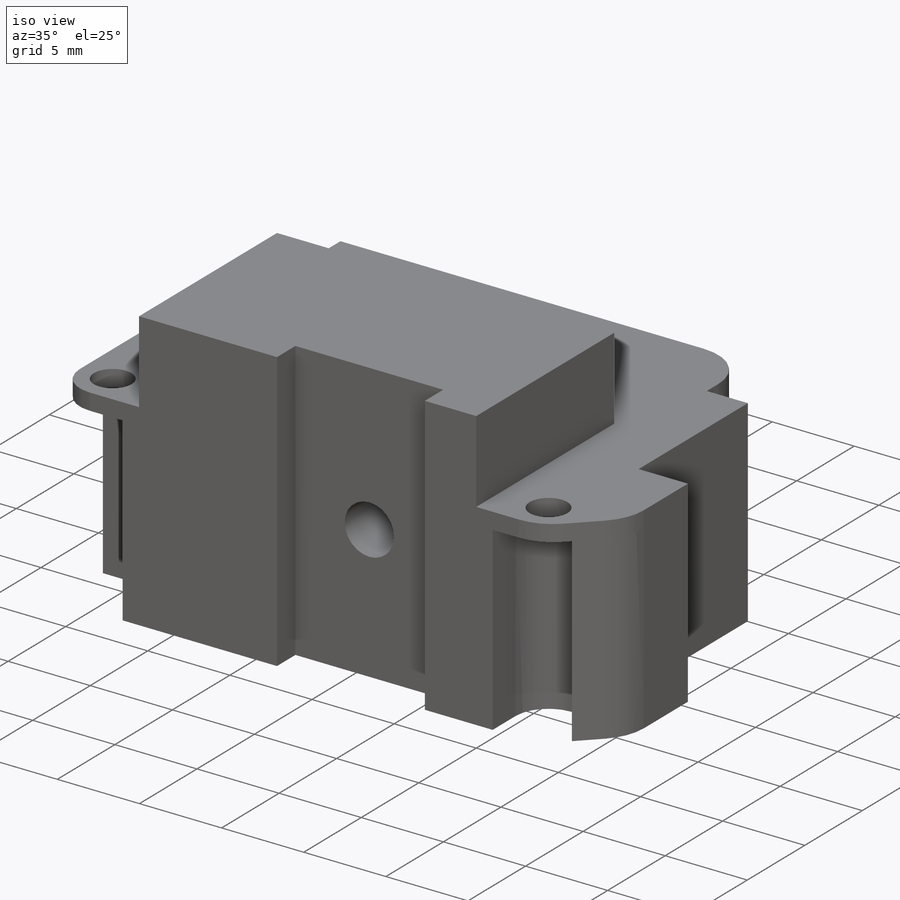
[diagram: iso view]
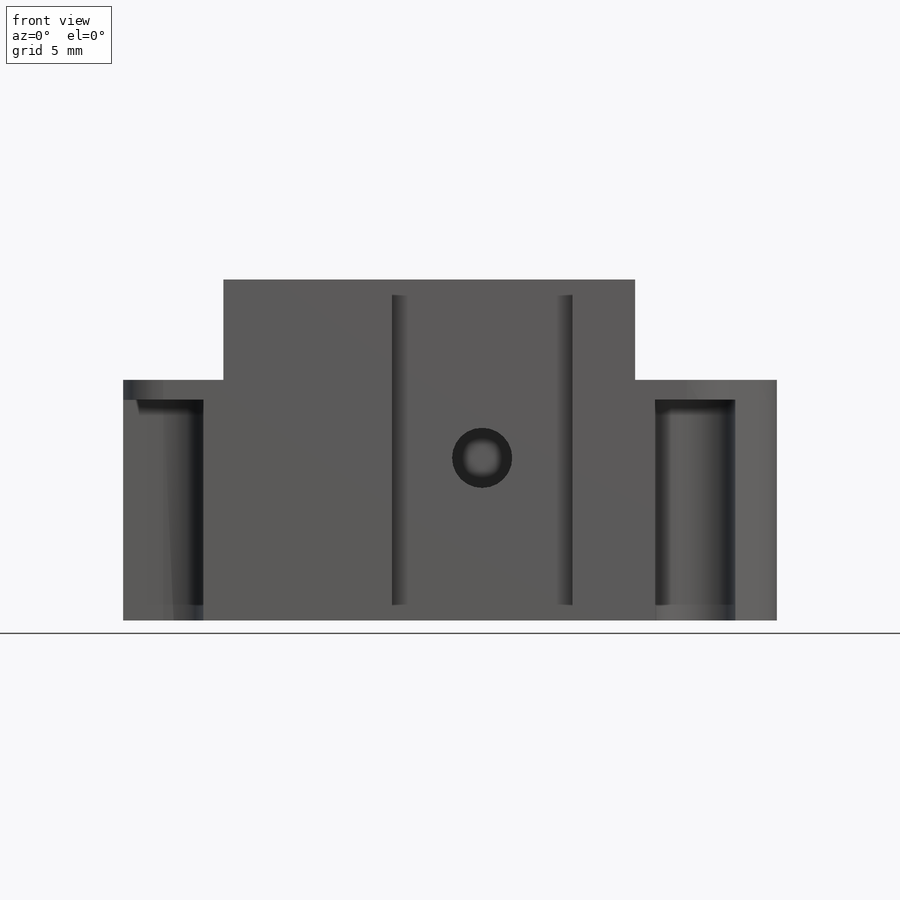
[diagram: front view]
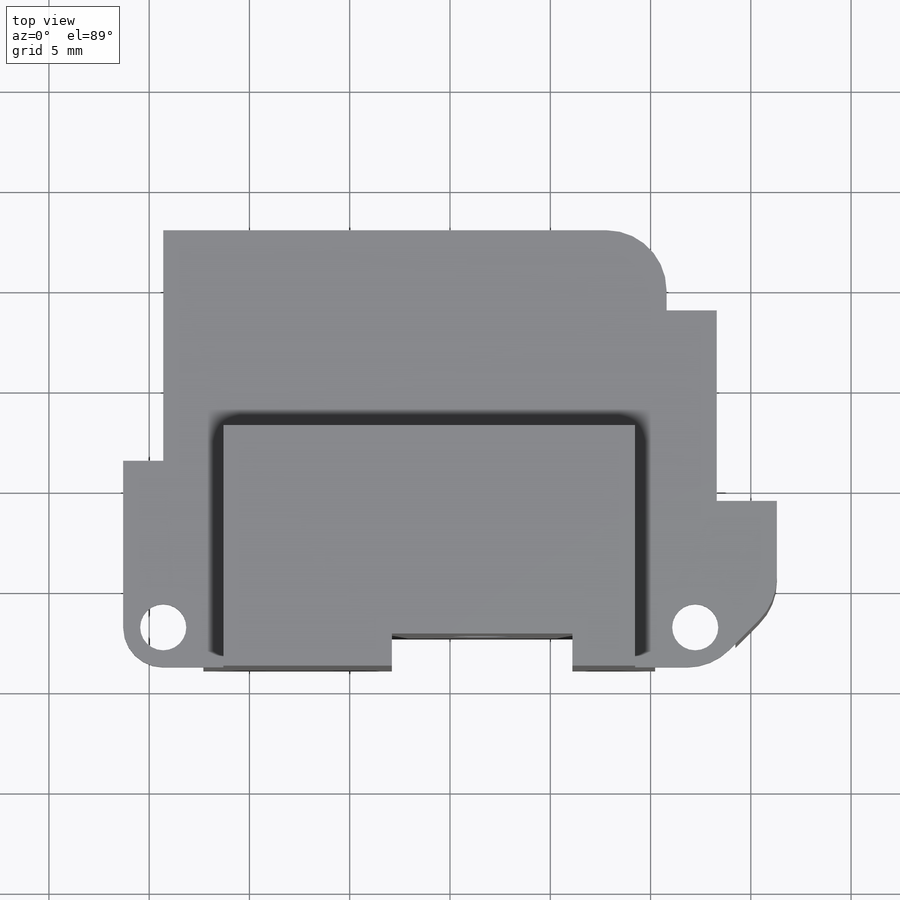
[diagram: top view]
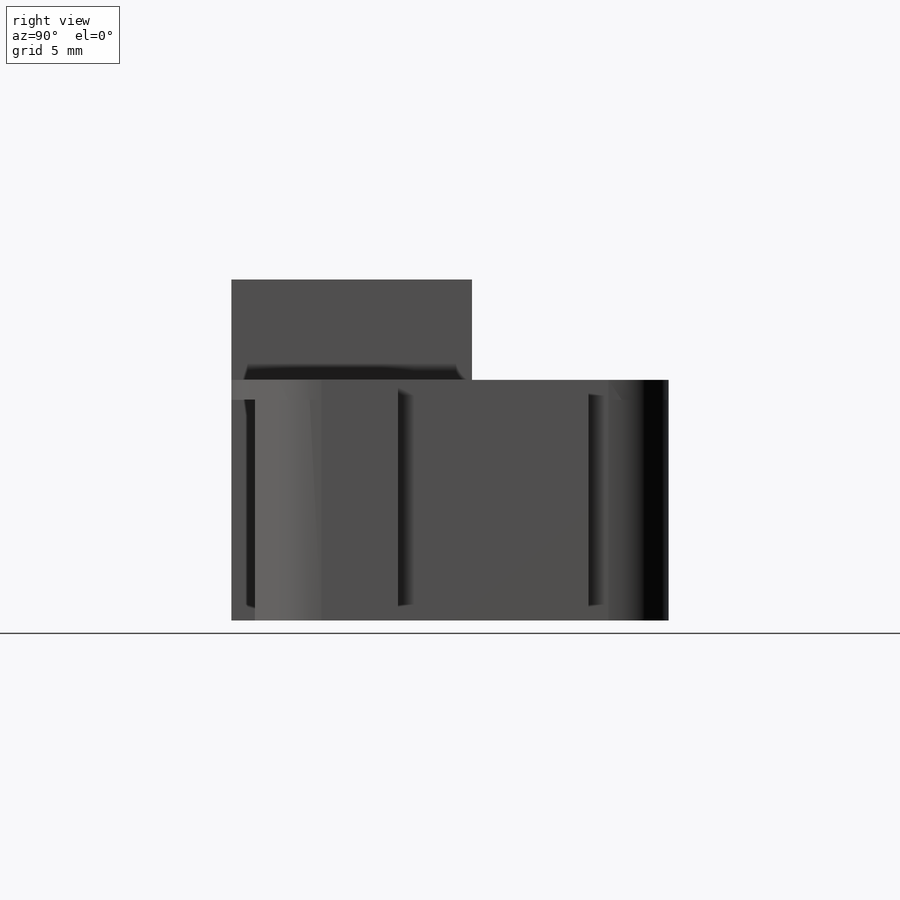
[diagram: right view]
SOLIDWORKS PART (.sldprt)
format: sldprt  version: not decoded by parser v0  size: 374,784 bytes
history: native  units: mm
features: sketch x6, plane x3, extrude x3, cut_extrude x3, material x1 (+9 scaffold rows collapsed)
feature tree (25):
  scaffold x9  (default folders/planes/origin — collapsed)
  material  "材质 <未指定>"
  plane  "前视基准面"
  plane  "上视基准面"
  plane  "右视基准面"
  sketch  "草图1"  dims[c1.D7=3.0mm c1.D10=3.0mm c1.D13=2.0mm c1.D14=2.3mm c1.D15=2.3mm c1.D1=32.6mm c1.D2=17.8mm c1.D3=2.0mm c1.D4=4.0mm c1.D5=5.5mm c1.D6=~2.192059mm c2.D6=45.0deg c2.D8=2.1mm c2.D9=7.5mm c2.D10=2.0mm c2.D11=9.5mm c2.D12=3.0mm c2.D13=1.5mm c2.D15=2.0mm]
  extrude  "凸台-拉伸1"  Depth=1mm
  sketch  "草图2"  dims[D4=1.5mm D2=2.0mm D3=0.0mm D1=0.0mm]
  extrude  "凸台-拉伸2"  Depth=11mm
  sketch  "草图4"
  cut_extrude  "切除-拉伸1"  Depth=11mm
  sketch  "草图5"  dims[c1.D2=2.3mm c1.D1=12.0mm c2.D2=3.0mm c2.D3=3.0mm]
  extrude  "凸台-拉伸3"  Depth=5mm
  sketch  "草图6"  dims[D1=17.9mm D2=9.0mm D3=1.6mm]
  cut_extrude  "切除-拉伸2"  [1 undecoded]
  sketch  "草图7"  dims[D2=3.0mm D1=8.9mm]
  cut_extrude  "切除-拉伸3"  Depth=4mm
decode coverage: 10 of 12 modeling features carry decoded parameters
note: ~ marks probable driven/reference dimensions
note: 1 parameter value undecoded
note: suppression state not decoded; provenance and decode notes live in map.json
